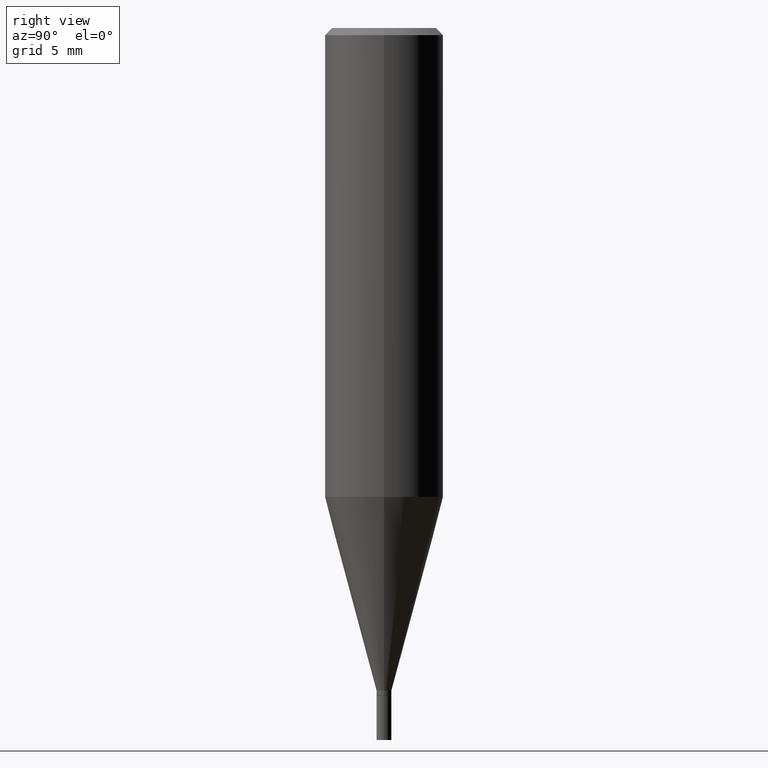
[diagram: clean part render]
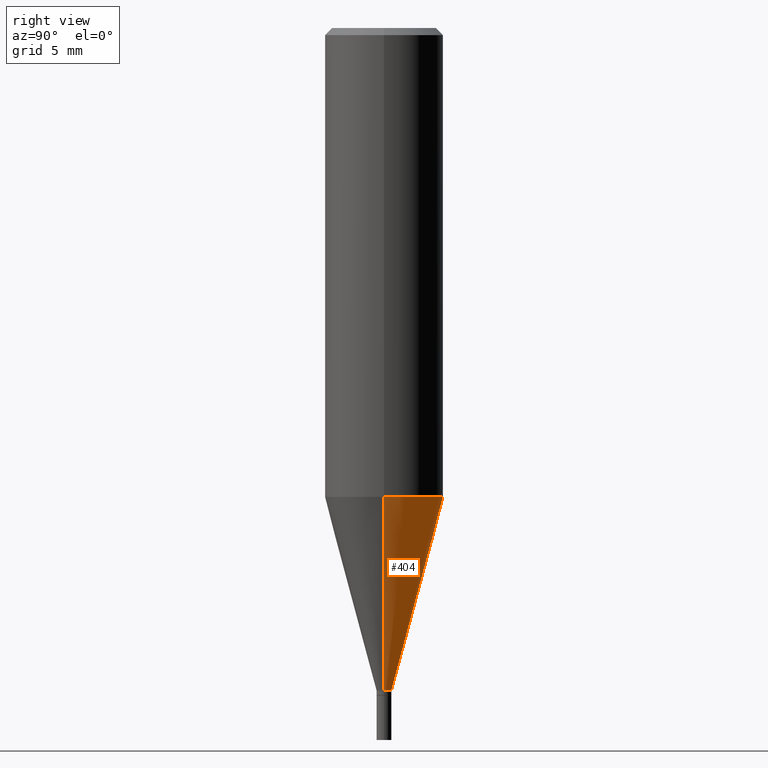
[diagram: same view with one face highlighted and labeled with its STEP entity id]
A machine part, right view. The second image highlights one B-rep face of the part: STEP entity #404.
In plain terms, the highlighted conical surface has half-angle 15 deg.
Its self-contained STEP definition (entity closure, byte-faithful):
#1 = ORIENTED_EDGE ( 'NONE', *, *, #149, .F. ) ;
#6 = ORIENTED_EDGE ( 'NONE', *, *, #9, .T. ) ;
#9 = EDGE_CURVE ( 'NONE', #235, #320, #152, .T. ) ;
#13 = VECTOR ( 'NONE', #144, 39.37007874015747433 ) ;
#15 = CARTESIAN_POINT ( 'NONE',  ( 3.413874453434450954E-29, -4.874107949025031235E-15, -1.396000000000000130 ) ) ;
#21 = DIRECTION ( 'NONE',  ( 0.2588190451025213501, 1.565188264969621968E-15, 0.9659258262890682012 ) ) ;
#26 = VERTEX_POINT ( 'NONE', #317 ) ;
#36 = AXIS2_PLACEMENT_3D ( 'NONE', #64, #89, #362 ) ;
#55 = DIRECTION ( 'NONE',  ( -2.445468806185136597E-29, 3.491481338843145583E-15, 1.000000000000000000 ) ) ;
#64 = CARTESIAN_POINT ( 'NONE',  ( 3.413874453434450954E-29, -4.874107949025031235E-15, -1.396000000000000130 ) ) ;
#83 = DIRECTION ( 'NONE',  ( 1.000000000000000000, -6.982962677686266711E-15, 0.000000000000000000 ) ) ;
#89 = DIRECTION ( 'NONE',  ( -2.445468806185136597E-29, 3.491481338843145583E-15, 1.000000000000000000 ) ) ;
#101 = CONICAL_SURFACE ( 'NONE', #36, 0.01559999999999991775, 0.2617993877991500740 ) ;
#112 = CIRCLE ( 'NONE', #345, 0.1250000000000000000 ) ;
#124 = VERTEX_POINT ( 'NONE', #422 ) ;
#144 = DIRECTION ( 'NONE',  ( -0.2588190451025213501, 5.211531920934551042E-15, 0.9659258262890682012 ) ) ;
#149 = EDGE_CURVE ( 'NONE', #26, #124, #112, .T. ) ;
#152 = CIRCLE ( 'NONE', #218, 0.01559999999999991775 ) ;
#200 = DIRECTION ( 'NONE',  ( -2.445468806185136597E-29, 3.491481338843145583E-15, 1.000000000000000000 ) ) ;
#217 = CARTESIAN_POINT ( 'NONE',  ( -0.01559999999999991775, -4.763263282246455981E-15, -1.396000000000000130 ) ) ;
#218 = AXIS2_PLACEMENT_3D ( 'NONE', #15, #55, #379 ) ;
#222 = EDGE_CURVE ( 'NONE', #320, #124, #430, .T. ) ;
#235 = VERTEX_POINT ( 'NONE', #253 ) ;
#241 = LINE ( 'NONE', #353, #283 ) ;
#244 = EDGE_LOOP ( 'NONE', ( #6, #278, #1, #458 ) ) ;
#253 = CARTESIAN_POINT ( 'NONE',  ( 0.01559999999999991775, -4.983042166796936213E-15, -1.396000000000000130 ) ) ;
#270 = CARTESIAN_POINT ( 'NONE',  ( -0.01559999999999991775, -3.661834305247487555E-15, -1.396000000000000130 ) ) ;
#278 = ORIENTED_EDGE ( 'NONE', *, *, #222, .T. ) ;
#283 = VECTOR ( 'NONE', #21, 39.37007874015747433 ) ;
#289 = FACE_OUTER_BOUND ( 'NONE', #244, .T. ) ;
#317 = CARTESIAN_POINT ( 'NONE',  ( 0.1249999999999999861, -4.321454082659426912E-15, -0.9877136416519656237 ) ) ;
#320 = VERTEX_POINT ( 'NONE', #270 ) ;
#345 = AXIS2_PLACEMENT_3D ( 'NONE', #415, #200, #83 ) ;
#353 = CARTESIAN_POINT ( 'NONE',  ( 0.01559999999999991775, -4.983042166796936213E-15, -1.396000000000000130 ) ) ;
#362 = DIRECTION ( 'NONE',  ( 1.000000000000000000, -6.982962677686257244E-15, 0.000000000000000000 ) ) ;
#379 = DIRECTION ( 'NONE',  ( 1.000000000000000000, -6.982962677686257244E-15, 0.000000000000000000 ) ) ;
#404 = ADVANCED_FACE ( 'NONE', ( #289 ), #101, .T. ) ;
#415 = CARTESIAN_POINT ( 'NONE',  ( 2.415422900103406254E-29, -3.448583747948643968E-15, -0.9877136416519656237 ) ) ;
#422 = CARTESIAN_POINT ( 'NONE',  ( -0.1249999999999999861, -2.560405328248518341E-15, -0.9877136416519656237 ) ) ;
#430 = LINE ( 'NONE', #217, #13 ) ;
#458 = ORIENTED_EDGE ( 'NONE', *, *, #465, .F. ) ;
#465 = EDGE_CURVE ( 'NONE', #235, #26, #241, .T. ) ;